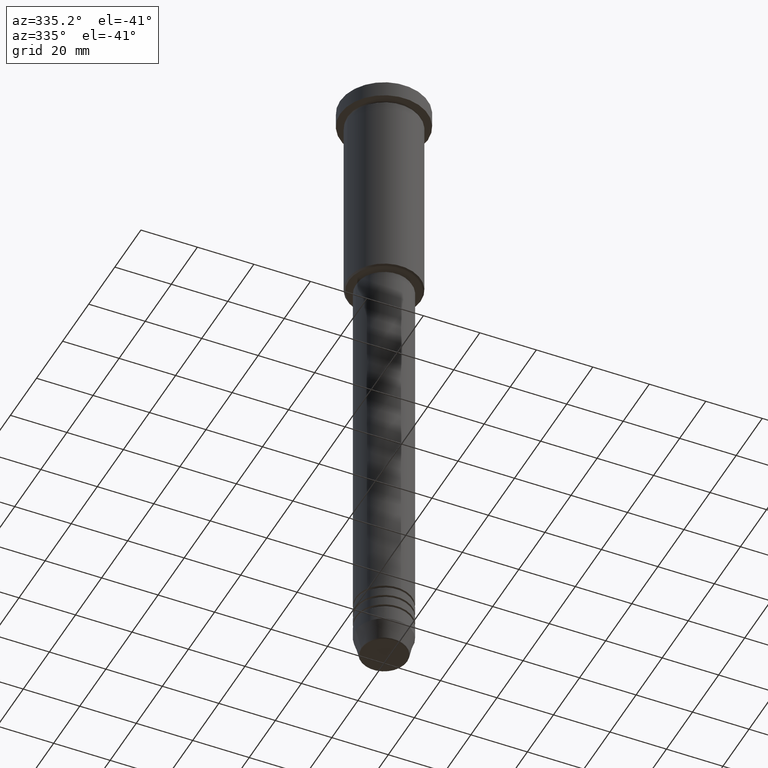
[diagram: clean part render]
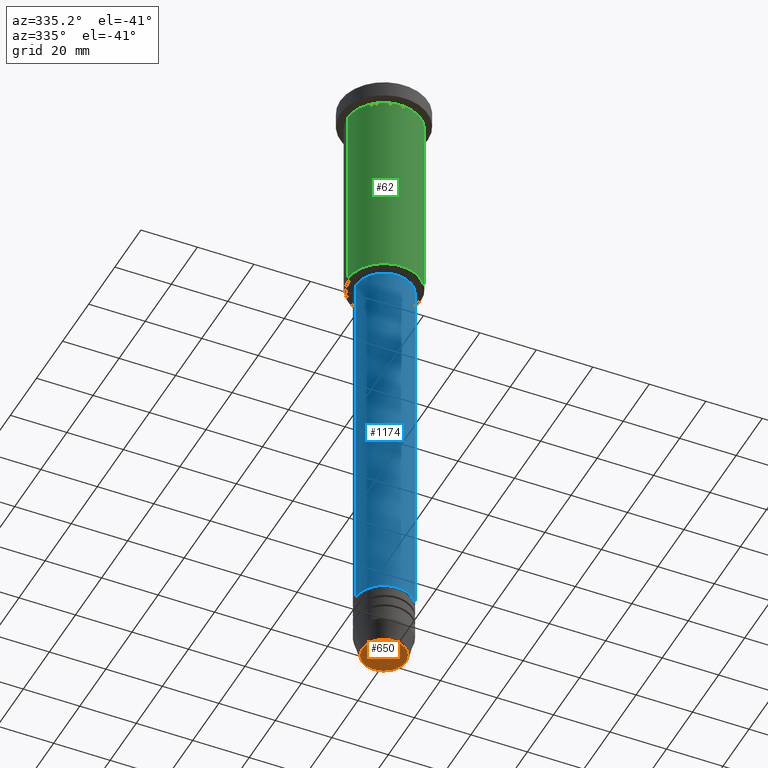
[diagram: same view with three faces highlighted in distinct colors, each labeled with its STEP entity id]
A machine part, auxiliary view with three faces highlighted in distinct colors.
Their STEP definitions:

[orange] entity #650 — the highlighted planar face has unit normal (0, -0, 1).
#8 = CARTESIAN_POINT ( 'NONE',  ( 0.000000000000000000, 0.000000000000000000, -230.9999999999999716 ) ) ;
#68 = PLANE ( 'NONE',  #1086 ) ;
#132 = DIRECTION ( 'NONE',  ( 0.000000000000000000, -0.000000000000000000, 1.000000000000000000 ) ) ;
#261 = CARTESIAN_POINT ( 'NONE',  ( -7.740692158992660055, 9.775343368540039135E-16, -230.9999999999999716 ) ) ;
#262 = DIRECTION ( 'NONE',  ( 1.000000000000000000, 0.000000000000000000, 0.000000000000000000 ) ) ;
#349 = DIRECTION ( 'NONE',  ( 0.000000000000000000, 0.000000000000000000, -1.000000000000000000 ) ) ;
#374 = EDGE_CURVE ( 'NONE', #780, #1053, #498, .T. ) ;
#418 = CARTESIAN_POINT ( 'NONE',  ( 0.000000000000000000, 0.000000000000000000, -230.9999999999999716 ) ) ;
#474 = ORIENTED_EDGE ( 'NONE', *, *, #374, .T. ) ;
#498 = CIRCLE ( 'NONE', #755, 7.740692158992660055 ) ;
#502 = ORIENTED_EDGE ( 'NONE', *, *, #1113, .T. ) ;
#507 = DIRECTION ( 'NONE',  ( 1.000000000000000000, 0.000000000000000000, 0.000000000000000000 ) ) ;
#514 = FACE_OUTER_BOUND ( 'NONE', #806, .T. ) ;
#650 = ADVANCED_FACE ( 'NONE', ( #514 ), #68, .F. ) ;
#730 = DIRECTION ( 'NONE',  ( 0.000000000000000000, 0.000000000000000000, -1.000000000000000000 ) ) ;
#755 = AXIS2_PLACEMENT_3D ( 'NONE', #8, #730, #262 ) ;
#776 = DIRECTION ( 'NONE',  ( 1.000000000000000000, 0.000000000000000000, 0.000000000000000000 ) ) ;
#780 = VERTEX_POINT ( 'NONE', #261 ) ;
#804 = CARTESIAN_POINT ( 'NONE',  ( 0.000000000000000000, 0.000000000000000000, -230.9999999999999716 ) ) ;
#806 = EDGE_LOOP ( 'NONE', ( #502, #474 ) ) ;
#882 = CARTESIAN_POINT ( 'NONE',  ( 7.740692158992660055, 0.000000000000000000, -230.9999999999999716 ) ) ;
#954 = CIRCLE ( 'NONE', #1087, 7.740692158992660055 ) ;
#1053 = VERTEX_POINT ( 'NONE', #882 ) ;
#1086 = AXIS2_PLACEMENT_3D ( 'NONE', #418, #132, #776 ) ;
#1087 = AXIS2_PLACEMENT_3D ( 'NONE', #804, #349, #507 ) ;
#1113 = EDGE_CURVE ( 'NONE', #1053, #780, #954, .T. ) ;

[blue] entity #1174 — the highlighted cylindrical surface (edge-blend (fillet) strip) has radius 10 mm, axis along (-0, -0, 1).
#37 = AXIS2_PLACEMENT_3D ( 'NONE', #896, #429, #902 ) ;
#47 = VECTOR ( 'NONE', #1069, 1000.000000000000000 ) ;
#101 = ORIENTED_EDGE ( 'NONE', *, *, #823, .T. ) ;
#108 = DIRECTION ( 'NONE',  ( -0.000000000000000000, -0.000000000000000000, 1.000000000000000000 ) ) ;
#110 = CARTESIAN_POINT ( 'NONE',  ( 9.999999999999998224, 0.000000000000000000, -77.00000000000001421 ) ) ;
#118 = DIRECTION ( 'NONE',  ( -0.000000000000000000, -0.000000000000000000, 1.000000000000000000 ) ) ;
#125 = DIRECTION ( 'NONE',  ( -0.000000000000000000, -0.000000000000000000, 1.000000000000000000 ) ) ;
#155 = VERTEX_POINT ( 'NONE', #110 ) ;
#243 = EDGE_CURVE ( 'NONE', #897, #696, #1051, .T. ) ;
#287 = EDGE_LOOP ( 'NONE', ( #350, #101, #883, #903 ) ) ;
#313 = CARTESIAN_POINT ( 'NONE',  ( 0.000000000000000000, 0.000000000000000000, -77.00000000000001421 ) ) ;
#350 = ORIENTED_EDGE ( 'NONE', *, *, #243, .F. ) ;
#429 = DIRECTION ( 'NONE',  ( -0.000000000000000000, -0.000000000000000000, 1.000000000000000000 ) ) ;
#467 = DIRECTION ( 'NONE',  ( 1.000000000000000000, 0.000000000000000000, 0.000000000000000000 ) ) ;
#479 = DIRECTION ( 'NONE',  ( 1.000000000000000000, 0.000000000000000000, 0.000000000000000000 ) ) ;
#490 = EDGE_CURVE ( 'NONE', #710, #155, #1031, .T. ) ;
#515 = CARTESIAN_POINT ( 'NONE',  ( -10.00000000000000000, 1.224646799147353256E-15, 0.000000000000000000 ) ) ;
#524 = FACE_OUTER_BOUND ( 'NONE', #287, .T. ) ;
#535 = CIRCLE ( 'NONE', #789, 10.00000000000000178 ) ;
#540 = CARTESIAN_POINT ( 'NONE',  ( 10.00000000000000178, 0.000000000000000000, -209.9999999999998863 ) ) ;
#671 = AXIS2_PLACEMENT_3D ( 'NONE', #313, #118, #479 ) ;
#696 = VERTEX_POINT ( 'NONE', #1004 ) ;
#710 = VERTEX_POINT ( 'NONE', #540 ) ;
#789 = AXIS2_PLACEMENT_3D ( 'NONE', #934, #108, #467 ) ;
#823 = EDGE_CURVE ( 'NONE', #897, #710, #535, .T. ) ;
#841 = CARTESIAN_POINT ( 'NONE',  ( 10.00000000000000000, 0.000000000000000000, 0.000000000000000000 ) ) ;
#883 = ORIENTED_EDGE ( 'NONE', *, *, #490, .T. ) ;
#885 = CARTESIAN_POINT ( 'NONE',  ( -10.00000000000000178, 1.224646799147353454E-15, -209.9999999999998863 ) ) ;
#896 = CARTESIAN_POINT ( 'NONE',  ( 0.000000000000000000, 0.000000000000000000, 0.000000000000000000 ) ) ;
#897 = VERTEX_POINT ( 'NONE', #885 ) ;
#902 = DIRECTION ( 'NONE',  ( 1.000000000000000000, 0.000000000000000000, 0.000000000000000000 ) ) ;
#903 = ORIENTED_EDGE ( 'NONE', *, *, #992, .F. ) ;
#908 = CYLINDRICAL_SURFACE ( 'NONE', #37, 10.00000000000000000 ) ;
#914 = VECTOR ( 'NONE', #125, 1000.000000000000000 ) ;
#934 = CARTESIAN_POINT ( 'NONE',  ( 0.000000000000000000, 0.000000000000000000, -209.9999999999998863 ) ) ;
#992 = EDGE_CURVE ( 'NONE', #696, #155, #1182, .T. ) ;
#1004 = CARTESIAN_POINT ( 'NONE',  ( -9.999999999999998224, 1.224646799147353256E-15, -77.00000000000001421 ) ) ;
#1031 = LINE ( 'NONE', #841, #914 ) ;
#1051 = LINE ( 'NONE', #515, #47 ) ;
#1069 = DIRECTION ( 'NONE',  ( -0.000000000000000000, -0.000000000000000000, 1.000000000000000000 ) ) ;
#1174 = ADVANCED_FACE ( 'NONE', ( #524 ), #908, .T. ) ;
#1182 = CIRCLE ( 'NONE', #671, 9.999999999999998224 ) ;

[green] entity #62 — the highlighted cylindrical surface (partial cylindrical patch) has radius 13 mm, axis along (-0, -0, 1).
#22 = DIRECTION ( 'NONE',  ( -0.000000000000000000, -0.000000000000000000, 1.000000000000000000 ) ) ;
#56 = AXIS2_PLACEMENT_3D ( 'NONE', #318, #135, #495 ) ;
#62 = ADVANCED_FACE ( 'NONE', ( #772 ), #591, .T. ) ;
#95 = EDGE_LOOP ( 'NONE', ( #1017, #556, #1090, #637 ) ) ;
#113 = VECTOR ( 'NONE', #653, 1000.000000000000000 ) ;
#135 = DIRECTION ( 'NONE',  ( -0.000000000000000000, -0.000000000000000000, 1.000000000000000000 ) ) ;
#212 = EDGE_CURVE ( 'NONE', #651, #837, #1132, .T. ) ;
#223 = AXIS2_PLACEMENT_3D ( 'NONE', #378, #22, #492 ) ;
#308 = VECTOR ( 'NONE', #494, 1000.000000000000000 ) ;
#318 = CARTESIAN_POINT ( 'NONE',  ( 0.000000000000000000, 0.000000000000000000, -6.999999999999995559 ) ) ;
#378 = CARTESIAN_POINT ( 'NONE',  ( 0.000000000000000000, 0.000000000000000000, 0.000000000000000000 ) ) ;
#492 = DIRECTION ( 'NONE',  ( 1.000000000000000000, 0.000000000000000000, 0.000000000000000000 ) ) ;
#494 = DIRECTION ( 'NONE',  ( -0.000000000000000000, -0.000000000000000000, 1.000000000000000000 ) ) ;
#495 = DIRECTION ( 'NONE',  ( 1.000000000000000000, 0.000000000000000000, 0.000000000000000000 ) ) ;
#497 = CARTESIAN_POINT ( 'NONE',  ( 13.00000000000000178, 0.000000000000000000, -6.999999999999995559 ) ) ;
#556 = ORIENTED_EDGE ( 'NONE', *, *, #212, .T. ) ;
#591 = CYLINDRICAL_SURFACE ( 'NONE', #223, 13.00000000000000178 ) ;
#599 = CARTESIAN_POINT ( 'NONE',  ( 13.00000000000000178, 0.000000000000000000, -75.49999999999998579 ) ) ;
#612 = VERTEX_POINT ( 'NONE', #497 ) ;
#627 = CARTESIAN_POINT ( 'NONE',  ( -13.00000000000000178, 1.592040838891559293E-15, -6.999999999999995559 ) ) ;
#637 = ORIENTED_EDGE ( 'NONE', *, *, #893, .F. ) ;
#651 = VERTEX_POINT ( 'NONE', #1135 ) ;
#653 = DIRECTION ( 'NONE',  ( -0.000000000000000000, -0.000000000000000000, 1.000000000000000000 ) ) ;
#685 = CARTESIAN_POINT ( 'NONE',  ( 13.00000000000000178, 0.000000000000000000, 0.000000000000000000 ) ) ;
#695 = LINE ( 'NONE', #685, #308 ) ;
#772 = FACE_OUTER_BOUND ( 'NONE', #95, .T. ) ;
#819 = EDGE_CURVE ( 'NONE', #651, #1153, #1022, .T. ) ;
#837 = VERTEX_POINT ( 'NONE', #599 ) ;
#875 = DIRECTION ( 'NONE',  ( -1.000000000000000000, 0.000000000000000000, 0.000000000000000000 ) ) ;
#893 = EDGE_CURVE ( 'NONE', #1153, #612, #901, .T. ) ;
#901 = CIRCLE ( 'NONE', #56, 13.00000000000000178 ) ;
#930 = EDGE_CURVE ( 'NONE', #837, #612, #695, .T. ) ;
#931 = AXIS2_PLACEMENT_3D ( 'NONE', #1159, #1136, #875 ) ;
#1017 = ORIENTED_EDGE ( 'NONE', *, *, #819, .F. ) ;
#1022 = LINE ( 'NONE', #1104, #113 ) ;
#1090 = ORIENTED_EDGE ( 'NONE', *, *, #930, .T. ) ;
#1104 = CARTESIAN_POINT ( 'NONE',  ( -13.00000000000000178, 1.592040838891559293E-15, 0.000000000000000000 ) ) ;
#1132 = CIRCLE ( 'NONE', #931, 13.00000000000000178 ) ;
#1135 = CARTESIAN_POINT ( 'NONE',  ( -13.00000000000000178, 1.592040838891559293E-15, -75.49999999999998579 ) ) ;
#1136 = DIRECTION ( 'NONE',  ( -0.000000000000000000, -0.000000000000000000, 1.000000000000000000 ) ) ;
#1153 = VERTEX_POINT ( 'NONE', #627 ) ;
#1159 = CARTESIAN_POINT ( 'NONE',  ( 0.000000000000000000, 0.000000000000000000, -75.49999999999998579 ) ) ;